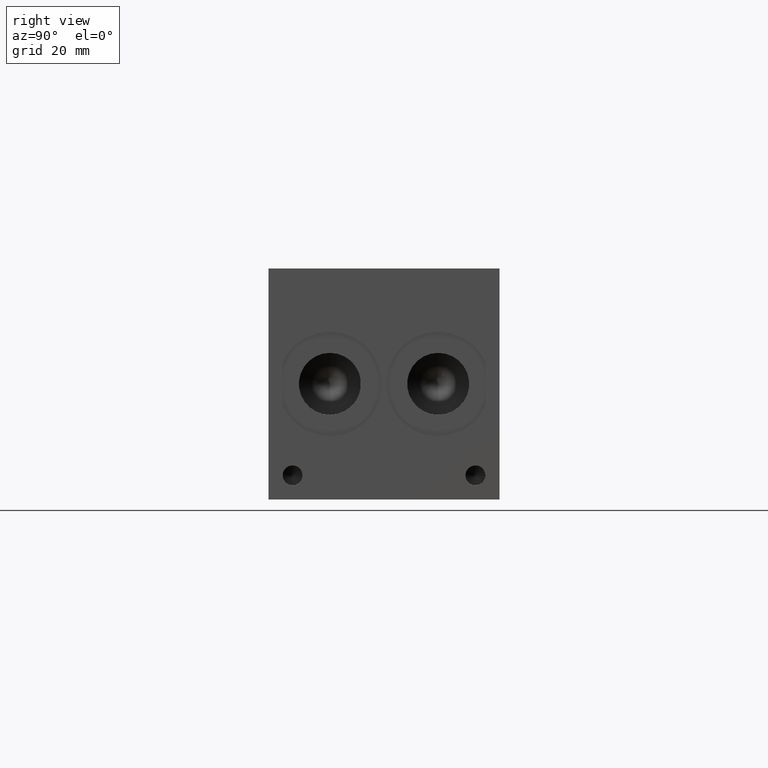
[diagram: clean part render]
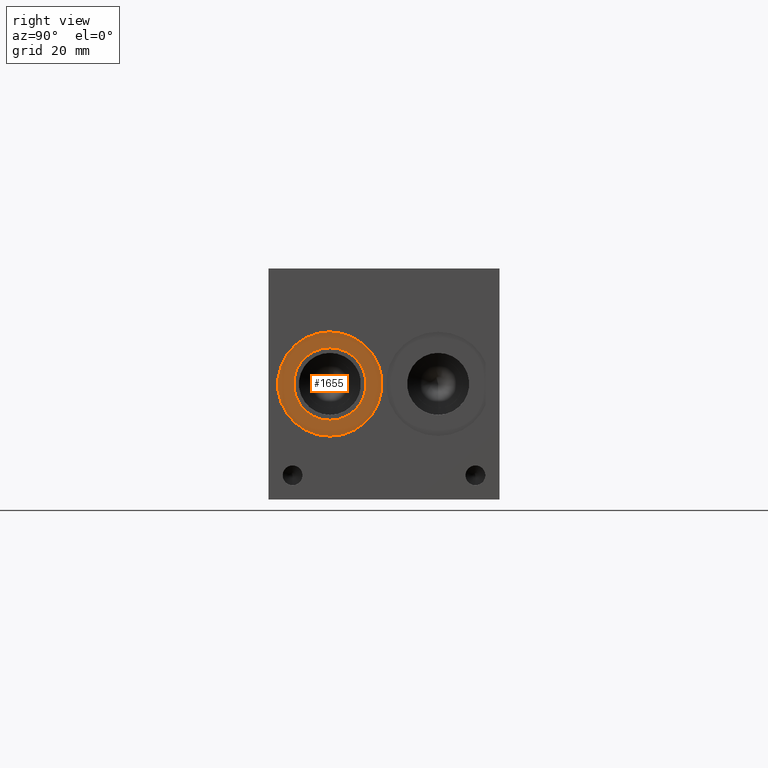
[diagram: same view with one face highlighted and labeled with its STEP entity id]
A machine part, right view. The second image highlights one B-rep face of the part: STEP entity #1655.
In plain terms, the highlighted planar face has unit normal (-1, 0, 0).
Its self-contained STEP definition (entity closure, byte-faithful):
#1621=CARTESIAN_POINT('',(215.11260000000004,20.243800000000004,26.149300000000004));
#1622=VERTEX_POINT('',#1621);
#1623=CARTESIAN_POINT('',(215.11260000000004,20.243800000000004,38.100000000000009));
#1624=DIRECTION('',(1.0,0.0,0.0));
#1625=DIRECTION('',(0.0,0.0,-1.0));
#1626=AXIS2_PLACEMENT_3D('',#1623,#1624,#1625);
#1627=CIRCLE('',#1626,11.950700000000003);
#1628=EDGE_CURVE('',#1622,#1622,#1627,.T.);
#1636=CARTESIAN_POINT('',(215.11260000000004,20.243800000000004,23.520400000000002));
#1637=DIRECTION('',(-1.0,0.0,0.0));
#1638=DIRECTION('',(0.0,0.0,1.0));
#1639=AXIS2_PLACEMENT_3D('',#1636,#1637,#1638);
#1640=PLANE('',#1639);
#1641=CARTESIAN_POINT('',(215.11260000000004,20.243800000000004,20.891500000000001));
#1642=VERTEX_POINT('',#1641);
#1643=CARTESIAN_POINT('',(215.11260000000004,20.243800000000004,38.100000000000009));
#1644=DIRECTION('',(1.0,0.0,0.0));
#1645=DIRECTION('',(0.0,0.0,-1.0));
#1646=AXIS2_PLACEMENT_3D('',#1643,#1644,#1645);
#1647=CIRCLE('',#1646,17.208500000000004);
#1648=EDGE_CURVE('',#1642,#1642,#1647,.T.);
#1649=ORIENTED_EDGE('',*,*,#1648,.T.);
#1650=EDGE_LOOP('',(#1649));
#1651=FACE_OUTER_BOUND('',#1650,.T.);
#1652=ORIENTED_EDGE('',*,*,#1628,.F.);
#1653=EDGE_LOOP('',(#1652));
#1654=FACE_BOUND('',#1653,.T.);
#1655=ADVANCED_FACE('',(#1651,#1654),#1640,.F.);